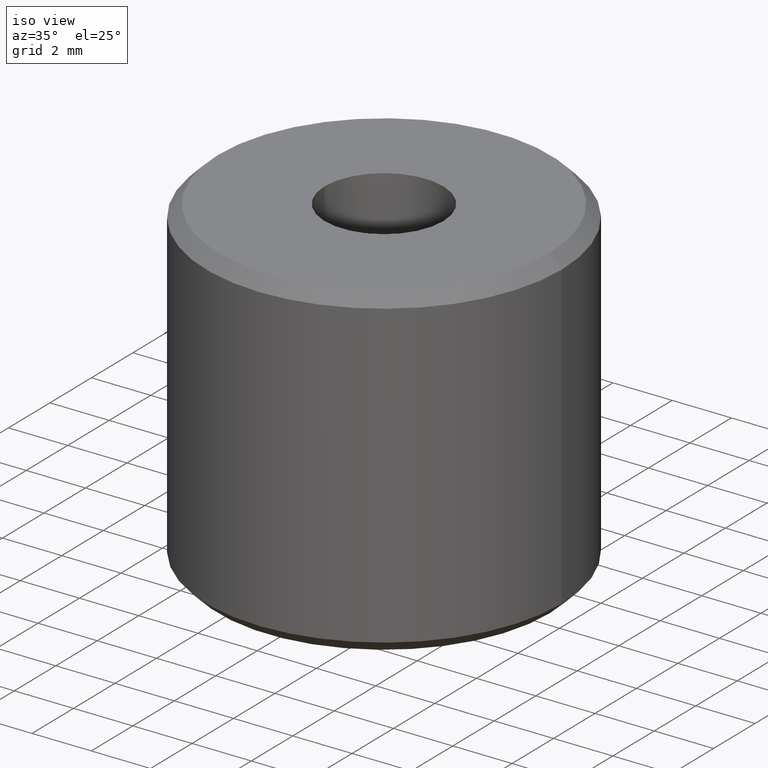
[diagram: clean part render]
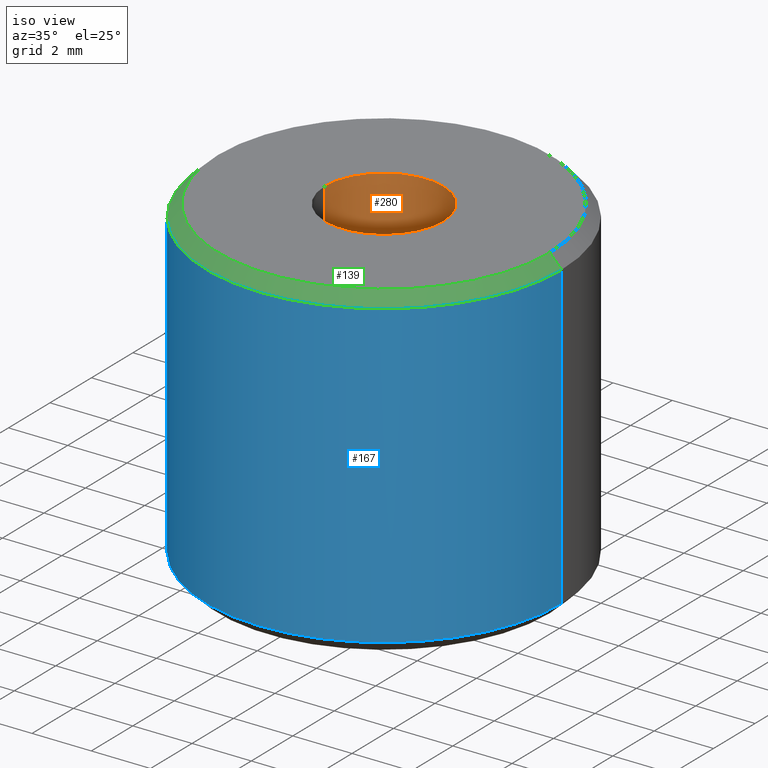
[diagram: same view with three faces highlighted in distinct colors, each labeled with its STEP entity id]
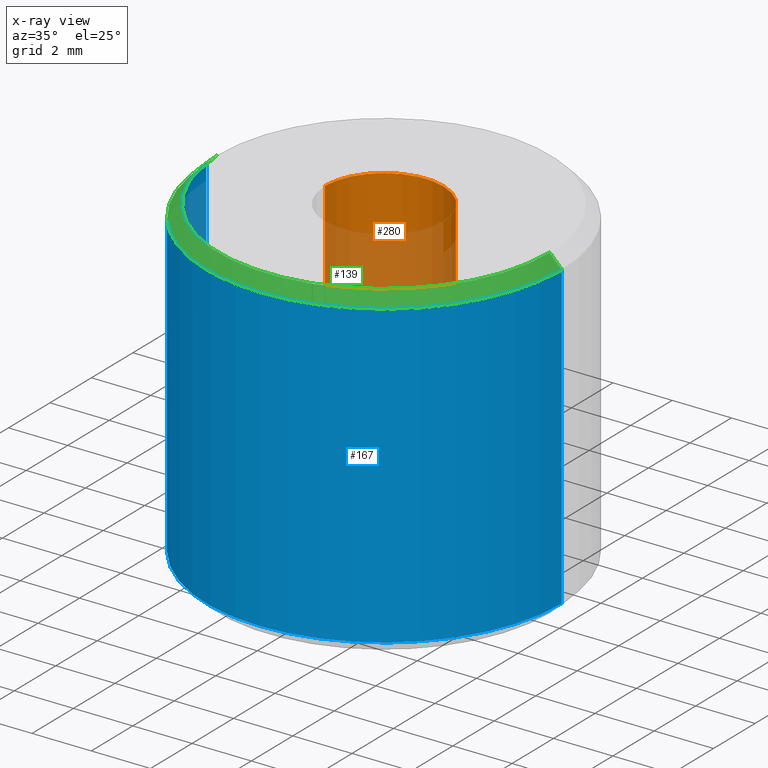
[diagram: x-ray of the same camera — body ghosted, the three highlighted faces saturated]
A machine part, iso view with three faces highlighted in distinct colors.
The next image is the same camera in x-ray (body ghosted, the three faces saturated) — at least one of them is partly hidden behind the body in this view.
Their STEP definitions:

[orange] entity #280 — the highlighted cylindrical surface (partial cylindrical patch) has radius 2 mm, axis along (-0, -0, 1).
#9 = ORIENTED_EDGE ( 'NONE', *, *, #254, .T. ) ;
#12 = DIRECTION ( 'NONE',  ( -0.0000000000000000000, -0.0000000000000000000, 1.000000000000000000 ) ) ;
#20 = VERTEX_POINT ( 'NONE', #235 ) ;
#32 = VECTOR ( 'NONE', #98, 1000.000000000000000 ) ;
#36 = CARTESIAN_POINT ( 'NONE',  ( 0.0000000000000000000, 0.1111111111113758500, 2.255140518769849200E-013 ) ) ;
#46 = EDGE_LOOP ( 'NONE', ( #274, #234, #9, #58 ) ) ;
#49 = CARTESIAN_POINT ( 'NONE',  ( 0.0000000000000000000, 0.1111111111113758500, 17.60149317175943700 ) ) ;
#54 = DIRECTION ( 'NONE',  ( 1.000000000000000000, 0.0000000000000000000, 0.0000000000000000000 ) ) ;
#57 = AXIS2_PLACEMENT_3D ( 'NONE', #36, #166, #169 ) ;
#58 = ORIENTED_EDGE ( 'NONE', *, *, #82, .T. ) ;
#66 = CARTESIAN_POINT ( 'NONE',  ( 1.999999999999958500, 0.1111111111113758500, 2.255140518769849200E-013 ) ) ;
#78 = DIRECTION ( 'NONE',  ( -0.0000000000000000000, -0.0000000000000000000, 1.000000000000000000 ) ) ;
#82 = EDGE_CURVE ( 'NONE', #198, #148, #257, .T. ) ;
#87 = EDGE_CURVE ( 'NONE', #20, #148, #178, .T. ) ;
#93 = DIRECTION ( 'NONE',  ( -0.0000000000000000000, -0.0000000000000000000, 1.000000000000000000 ) ) ;
#96 = CARTESIAN_POINT ( 'NONE',  ( 1.999999999999957100, 0.1111111111113758500, 11.00000000000022600 ) ) ;
#98 = DIRECTION ( 'NONE',  ( -0.0000000000000000000, -0.0000000000000000000, 1.000000000000000000 ) ) ;
#142 = CARTESIAN_POINT ( 'NONE',  ( 1.999999999999957600, 0.1111111111113758500, 17.60149317175943700 ) ) ;
#148 = VERTEX_POINT ( 'NONE', #183 ) ;
#160 = AXIS2_PLACEMENT_3D ( 'NONE', #49, #78, #54 ) ;
#166 = DIRECTION ( 'NONE',  ( -0.0000000000000000000, -0.0000000000000000000, 1.000000000000000000 ) ) ;
#169 = DIRECTION ( 'NONE',  ( 1.000000000000000000, 0.0000000000000000000, 0.0000000000000000000 ) ) ;
#174 = EDGE_CURVE ( 'NONE', #275, #20, #252, .T. ) ;
#178 = LINE ( 'NONE', #180, #32 ) ;
#180 = CARTESIAN_POINT ( 'NONE',  ( -1.999999999999957600, 0.1111111111113761000, 17.60149317175943700 ) ) ;
#183 = CARTESIAN_POINT ( 'NONE',  ( -1.999999999999957100, 0.1111111111113761000, 11.00000000000022600 ) ) ;
#198 = VERTEX_POINT ( 'NONE', #96 ) ;
#234 = ORIENTED_EDGE ( 'NONE', *, *, #174, .F. ) ;
#235 = CARTESIAN_POINT ( 'NONE',  ( -1.999999999999958500, 0.1111111111113761000, 2.255140518769849200E-013 ) ) ;
#242 = AXIS2_PLACEMENT_3D ( 'NONE', #260, #12, #317 ) ;
#252 = CIRCLE ( 'NONE', #57, 1.999999999999958500 ) ;
#253 = CYLINDRICAL_SURFACE ( 'NONE', #160, 1.999999999999957600 ) ;
#254 = EDGE_CURVE ( 'NONE', #275, #198, #271, .T. ) ;
#257 = CIRCLE ( 'NONE', #242, 1.999999999999957100 ) ;
#260 = CARTESIAN_POINT ( 'NONE',  ( 0.0000000000000000000, 0.1111111111113758500, 11.00000000000022600 ) ) ;
#262 = VECTOR ( 'NONE', #93, 1000.000000000000000 ) ;
#271 = LINE ( 'NONE', #142, #262 ) ;
#274 = ORIENTED_EDGE ( 'NONE', *, *, #87, .F. ) ;
#275 = VERTEX_POINT ( 'NONE', #66 ) ;
#280 = ADVANCED_FACE ( 'NONE', ( #333 ), #253, .F. ) ;
#317 = DIRECTION ( 'NONE',  ( 1.000000000000000000, 0.0000000000000000000, 0.0000000000000000000 ) ) ;
#333 = FACE_OUTER_BOUND ( 'NONE', #46, .T. ) ;

[blue] entity #167 — the highlighted cylindrical surface (partial cylindrical patch) has radius 6 mm, axis along (-0, -0, 1).
#6 = CYLINDRICAL_SURFACE ( 'NONE', #76, 5.999999999999957400 ) ;
#10 = CARTESIAN_POINT ( 'NONE',  ( 5.999999999999958300, 0.1111111111113758500, 0.4074074074076027300 ) ) ;
#19 = EDGE_CURVE ( 'NONE', #286, #39, #337, .T. ) ;
#33 = CARTESIAN_POINT ( 'NONE',  ( -5.999999999999956500, 0.1111111111113765900, 10.59259259259270700 ) ) ;
#39 = VERTEX_POINT ( 'NONE', #10 ) ;
#42 = DIRECTION ( 'NONE',  ( -0.0000000000000000000, -0.0000000000000000000, 1.000000000000000000 ) ) ;
#47 = CARTESIAN_POINT ( 'NONE',  ( 0.0000000000000000000, 0.1111111111113758500, 10.59259259259270700 ) ) ;
#68 = EDGE_CURVE ( 'NONE', #263, #288, #324, .T. ) ;
#71 = DIRECTION ( 'NONE',  ( -0.0000000000000000000, -0.0000000000000000000, 1.000000000000000000 ) ) ;
#76 = AXIS2_PLACEMENT_3D ( 'NONE', #181, #214, #237 ) ;
#80 = CARTESIAN_POINT ( 'NONE',  ( 5.999999999999956500, 0.1111111111113758500, 10.59259259259270700 ) ) ;
#102 = DIRECTION ( 'NONE',  ( 1.000000000000000000, 0.0000000000000000000, 0.0000000000000000000 ) ) ;
#108 = CARTESIAN_POINT ( 'NONE',  ( -5.999999999999957400, 0.1111111111113765900, 17.60149317175943700 ) ) ;
#110 = VECTOR ( 'NONE', #266, 1000.000000000000000 ) ;
#115 = AXIS2_PLACEMENT_3D ( 'NONE', #312, #71, #177 ) ;
#137 = ORIENTED_EDGE ( 'NONE', *, *, #300, .T. ) ;
#167 = ADVANCED_FACE ( 'NONE', ( #307 ), #6, .T. ) ;
#177 = DIRECTION ( 'NONE',  ( 1.000000000000000000, 0.0000000000000000000, 0.0000000000000000000 ) ) ;
#181 = CARTESIAN_POINT ( 'NONE',  ( 0.0000000000000000000, 0.1111111111113758500, 17.60149317175943700 ) ) ;
#184 = LINE ( 'NONE', #108, #246 ) ;
#190 = LINE ( 'NONE', #318, #110 ) ;
#191 = EDGE_LOOP ( 'NONE', ( #311, #347, #137, #348 ) ) ;
#214 = DIRECTION ( 'NONE',  ( -0.0000000000000000000, -0.0000000000000000000, 1.000000000000000000 ) ) ;
#222 = DIRECTION ( 'NONE',  ( -0.0000000000000000000, -0.0000000000000000000, 1.000000000000000000 ) ) ;
#228 = AXIS2_PLACEMENT_3D ( 'NONE', #47, #42, #102 ) ;
#237 = DIRECTION ( 'NONE',  ( 1.000000000000000000, 0.0000000000000000000, 0.0000000000000000000 ) ) ;
#246 = VECTOR ( 'NONE', #222, 1000.000000000000000 ) ;
#263 = VERTEX_POINT ( 'NONE', #33 ) ;
#264 = CARTESIAN_POINT ( 'NONE',  ( -5.999999999999959100, 0.1111111111113765900, 0.4074074074076027300 ) ) ;
#266 = DIRECTION ( 'NONE',  ( -0.0000000000000000000, -0.0000000000000000000, 1.000000000000000000 ) ) ;
#286 = VERTEX_POINT ( 'NONE', #264 ) ;
#288 = VERTEX_POINT ( 'NONE', #80 ) ;
#300 = EDGE_CURVE ( 'NONE', #39, #288, #190, .T. ) ;
#307 = FACE_OUTER_BOUND ( 'NONE', #191, .T. ) ;
#311 = ORIENTED_EDGE ( 'NONE', *, *, #319, .F. ) ;
#312 = CARTESIAN_POINT ( 'NONE',  ( 0.0000000000000000000, 0.1111111111113758500, 0.4074074074076027300 ) ) ;
#318 = CARTESIAN_POINT ( 'NONE',  ( 5.999999999999957400, 0.1111111111113758500, 17.60149317175943700 ) ) ;
#319 = EDGE_CURVE ( 'NONE', #286, #263, #184, .T. ) ;
#324 = CIRCLE ( 'NONE', #228, 5.999999999999956500 ) ;
#337 = CIRCLE ( 'NONE', #115, 5.999999999999958300 ) ;
#347 = ORIENTED_EDGE ( 'NONE', *, *, #19, .T. ) ;
#348 = ORIENTED_EDGE ( 'NONE', *, *, #68, .F. ) ;

[green] entity #139 — the highlighted conical surface has half-angle 45 deg.
#22 = EDGE_CURVE ( 'NONE', #114, #288, #195, .T. ) ;
#29 = EDGE_LOOP ( 'NONE', ( #176, #321, #136, #217 ) ) ;
#33 = CARTESIAN_POINT ( 'NONE',  ( -5.999999999999956500, 0.1111111111113765900, 10.59259259259270700 ) ) ;
#42 = DIRECTION ( 'NONE',  ( -0.0000000000000000000, -0.0000000000000000000, 1.000000000000000000 ) ) ;
#47 = CARTESIAN_POINT ( 'NONE',  ( 0.0000000000000000000, 0.1111111111113758500, 10.59259259259270700 ) ) ;
#50 = LINE ( 'NONE', #128, #127 ) ;
#68 = EDGE_CURVE ( 'NONE', #263, #288, #324, .T. ) ;
#80 = CARTESIAN_POINT ( 'NONE',  ( 5.999999999999956500, 0.1111111111113758500, 10.59259259259270700 ) ) ;
#99 = EDGE_CURVE ( 'NONE', #105, #114, #236, .T. ) ;
#102 = DIRECTION ( 'NONE',  ( 1.000000000000000000, 0.0000000000000000000, 0.0000000000000000000 ) ) ;
#105 = VERTEX_POINT ( 'NONE', #186 ) ;
#107 = FACE_OUTER_BOUND ( 'NONE', #29, .T. ) ;
#114 = VERTEX_POINT ( 'NONE', #150 ) ;
#123 = VECTOR ( 'NONE', #340, 1000.000000000000000 ) ;
#127 = VECTOR ( 'NONE', #290, 1000.000000000000000 ) ;
#128 = CARTESIAN_POINT ( 'NONE',  ( -5.592592592592525900, 0.1111111111113758500, 11.00000000000022200 ) ) ;
#130 = CARTESIAN_POINT ( 'NONE',  ( 0.0000000000000000000, 0.1111111111113758500, 11.00000000000022200 ) ) ;
#136 = ORIENTED_EDGE ( 'NONE', *, *, #304, .T. ) ;
#139 = ADVANCED_FACE ( 'NONE', ( #107 ), #298, .T. ) ;
#150 = CARTESIAN_POINT ( 'NONE',  ( 5.592592592592525900, 0.1111111111113765600, 11.00000000000022200 ) ) ;
#155 = DIRECTION ( 'NONE',  ( 1.000000000000000000, 0.0000000000000000000, 0.0000000000000000000 ) ) ;
#176 = ORIENTED_EDGE ( 'NONE', *, *, #22, .F. ) ;
#179 = CARTESIAN_POINT ( 'NONE',  ( 5.592592592592525900, 0.1111111111113765500, 11.00000000000022200 ) ) ;
#186 = CARTESIAN_POINT ( 'NONE',  ( -5.592592592592525900, 0.1111111111113758500, 11.00000000000022200 ) ) ;
#195 = LINE ( 'NONE', #179, #123 ) ;
#212 = DIRECTION ( 'NONE',  ( -1.000000000000000000, 0.0000000000000000000, 0.0000000000000000000 ) ) ;
#215 = DIRECTION ( 'NONE',  ( -0.0000000000000000000, -0.0000000000000000000, 1.000000000000000000 ) ) ;
#217 = ORIENTED_EDGE ( 'NONE', *, *, #68, .T. ) ;
#228 = AXIS2_PLACEMENT_3D ( 'NONE', #47, #42, #102 ) ;
#236 = CIRCLE ( 'NONE', #259, 5.592592592592525900 ) ;
#259 = AXIS2_PLACEMENT_3D ( 'NONE', #130, #215, #155 ) ;
#263 = VERTEX_POINT ( 'NONE', #33 ) ;
#288 = VERTEX_POINT ( 'NONE', #80 ) ;
#289 = DIRECTION ( 'NONE',  ( 0.0000000000000000000, 0.0000000000000000000, -1.000000000000000000 ) ) ;
#290 = DIRECTION ( 'NONE',  ( -0.7071067811864753000, 0.0000000000000000000, -0.7071067811866197400 ) ) ;
#298 = CONICAL_SURFACE ( 'NONE', #316, 5.592592592592525900, 0.7853981633973461400 ) ;
#304 = EDGE_CURVE ( 'NONE', #105, #263, #50, .T. ) ;
#316 = AXIS2_PLACEMENT_3D ( 'NONE', #345, #289, #212 ) ;
#321 = ORIENTED_EDGE ( 'NONE', *, *, #99, .F. ) ;
#324 = CIRCLE ( 'NONE', #228, 5.999999999999956500 ) ;
#340 = DIRECTION ( 'NONE',  ( 0.7071067811864753000, 8.659560562354047900E-017, -0.7071067811866197400 ) ) ;
#345 = CARTESIAN_POINT ( 'NONE',  ( 0.0000000000000000000, 0.1111111111113758500, 11.00000000000022200 ) ) ;